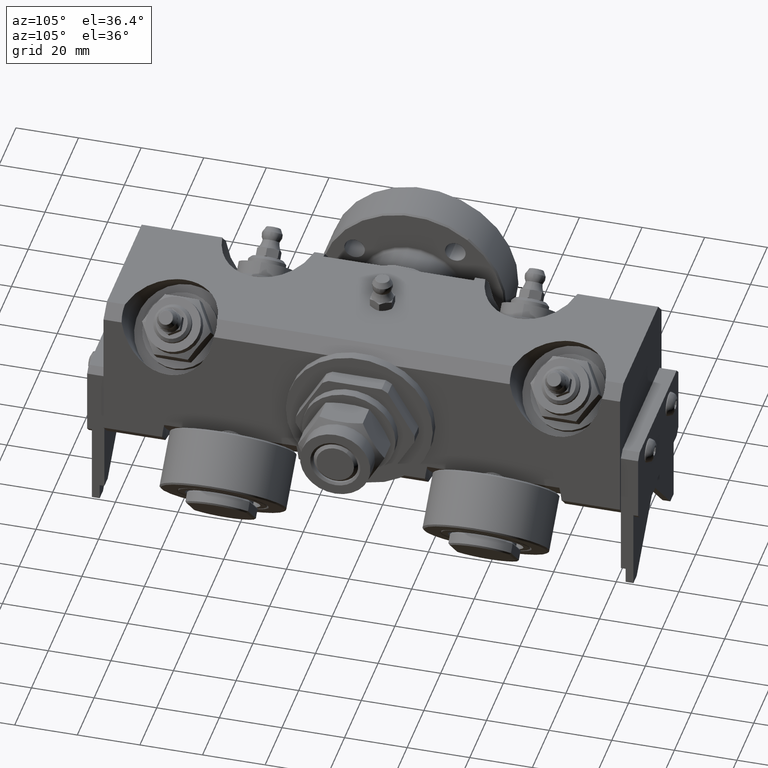
[diagram: clean part render]
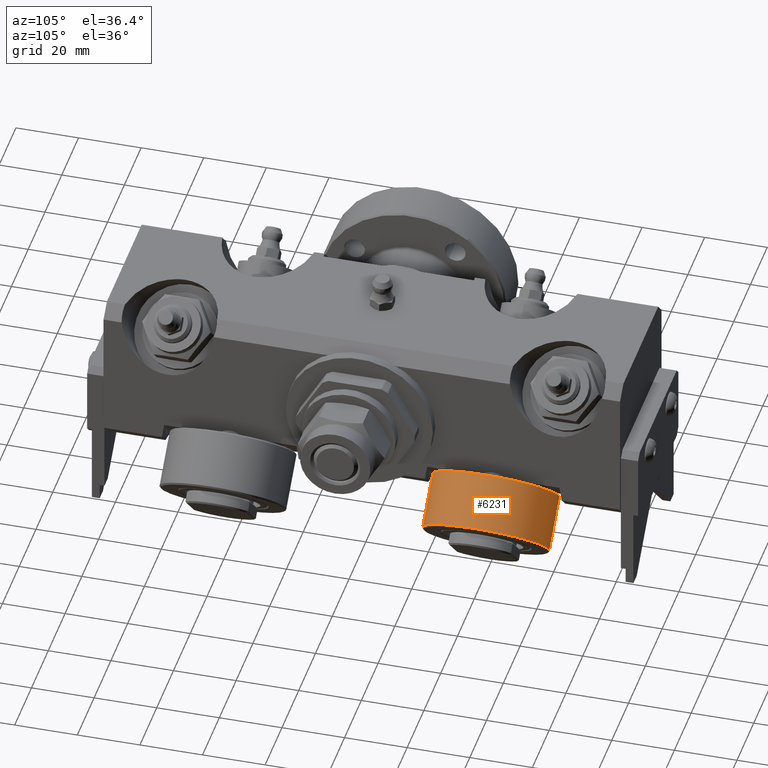
[diagram: same view with one face highlighted and labeled with its STEP entity id]
A machine part, auxiliary view. The second image highlights one B-rep face of the part: STEP entity #6231.
In plain terms, the highlighted cylindrical surface (bore or boss wall) has radius 20 mm, axis along (-0.7071, 0, 0.7071).
Its self-contained STEP definition (entity closure, byte-faithful):
#754=FACE_OUTER_BOUND('',#1127,.T.);
#1127=EDGE_LOOP('',(#4749,#4750,#4751,#4752,#4753,#4754));
#1537=CIRCLE('',#7133,20.);
#1538=CIRCLE('',#7134,20.);
#1539=CIRCLE('',#7136,20.);
#1540=CIRCLE('',#7137,20.);
#2029=LINE('',#10938,#2400);
#2400=VECTOR('',#8266,20.);
#2833=VERTEX_POINT('',#10931);
#2834=VERTEX_POINT('',#10933);
#2835=VERTEX_POINT('',#10937);
#2836=VERTEX_POINT('',#10939);
#3547=EDGE_CURVE('',#2833,#2834,#1537,.T.);
#3548=EDGE_CURVE('',#2834,#2833,#1538,.T.);
#3549=EDGE_CURVE('',#2834,#2835,#2029,.T.);
#3550=EDGE_CURVE('',#2836,#2835,#1539,.T.);
#3551=EDGE_CURVE('',#2835,#2836,#1540,.T.);
#4749=ORIENTED_EDGE('',*,*,#3547,.F.);
#4750=ORIENTED_EDGE('',*,*,#3548,.F.);
#4751=ORIENTED_EDGE('',*,*,#3549,.T.);
#4752=ORIENTED_EDGE('',*,*,#3550,.F.);
#4753=ORIENTED_EDGE('',*,*,#3551,.F.);
#4754=ORIENTED_EDGE('',*,*,#3549,.F.);
#6068=CYLINDRICAL_SURFACE('',#7135,20.);
#6231=ADVANCED_FACE('',(#754),#6068,.T.);
#7133=AXIS2_PLACEMENT_3D('',#10934,#8260,#8261);
#7134=AXIS2_PLACEMENT_3D('',#10935,#8262,#8263);
#7135=AXIS2_PLACEMENT_3D('',#10936,#8264,#8265);
#7136=AXIS2_PLACEMENT_3D('',#10940,#8267,#8268);
#7137=AXIS2_PLACEMENT_3D('',#10941,#8269,#8270);
#8260=DIRECTION('center_axis',(-1.,0.,0.));
#8261=DIRECTION('ref_axis',(0.,0.,-1.));
#8262=DIRECTION('center_axis',(-1.,0.,0.));
#8263=DIRECTION('ref_axis',(0.,0.,-1.));
#8264=DIRECTION('center_axis',(-1.,0.,0.));
#8265=DIRECTION('ref_axis',(0.,0.,1.));
#8266=DIRECTION('',(1.,0.,0.));
#8267=DIRECTION('center_axis',(1.,0.,0.));
#8268=DIRECTION('ref_axis',(0.,0.,-1.));
#8269=DIRECTION('center_axis',(1.,0.,0.));
#8270=DIRECTION('ref_axis',(0.,0.,-1.));
#10931=CARTESIAN_POINT('',(-8.5,2.44929359829471E-15,20.));
#10933=CARTESIAN_POINT('',(-8.5,-2.44929359829471E-15,-20.));
#10934=CARTESIAN_POINT('Origin',(-8.5,0.,0.));
#10935=CARTESIAN_POINT('Origin',(-8.5,0.,0.));
#10936=CARTESIAN_POINT('Origin',(0.,0.,0.));
#10937=CARTESIAN_POINT('',(8.5,-2.44929359829471E-15,-20.));
#10938=CARTESIAN_POINT('',(0.,-2.44929359829471E-15,-20.));
#10939=CARTESIAN_POINT('',(8.5,-2.44929359829471E-15,20.));
#10940=CARTESIAN_POINT('Origin',(8.5,0.,0.));
#10941=CARTESIAN_POINT('Origin',(8.5,0.,0.));